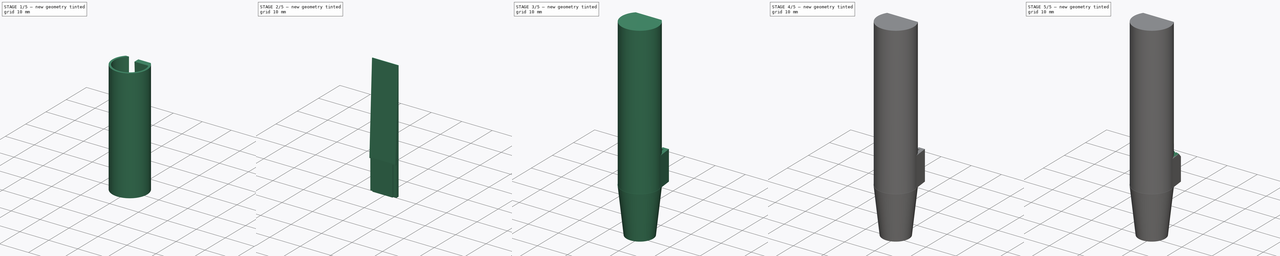
[diagram: build sequence overview — one tinted view per stage of 5, left to right]
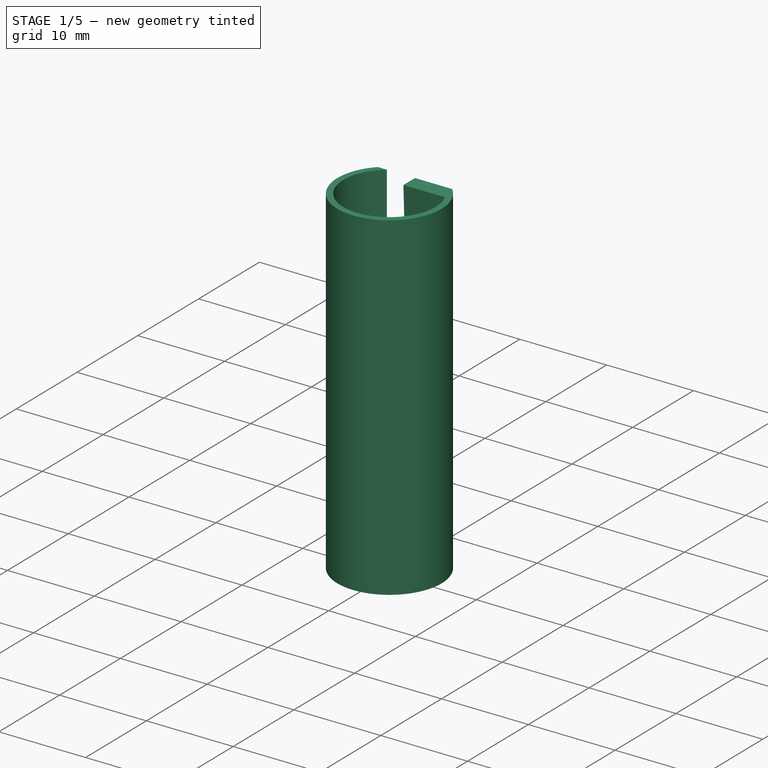
[diagram: stage 1 of 5 — iso view after this stage's code; geometry added in this stage tinted green]
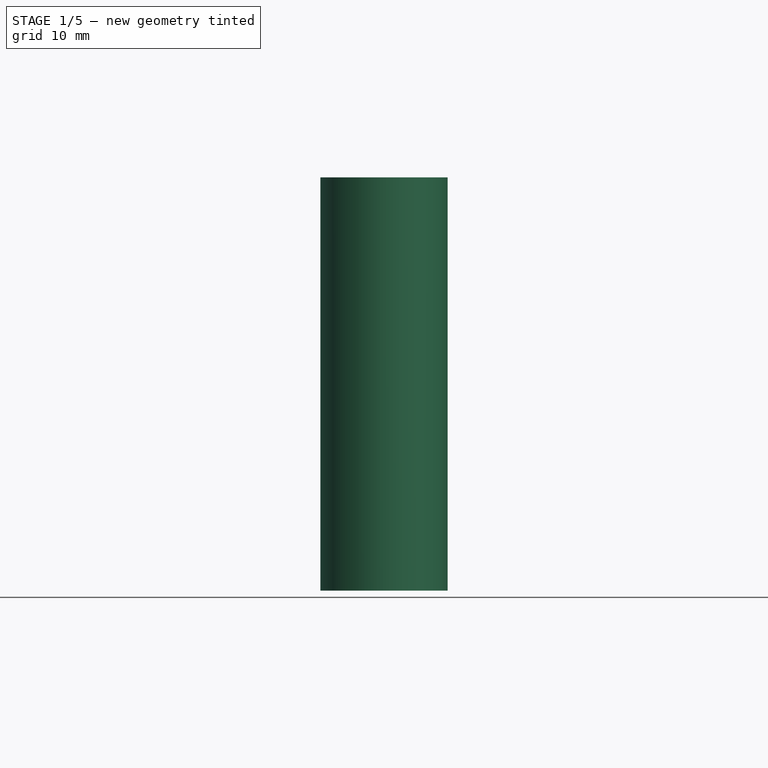
[diagram: stage 1 of 5 — front view after this stage's code; geometry added in this stage tinted green]
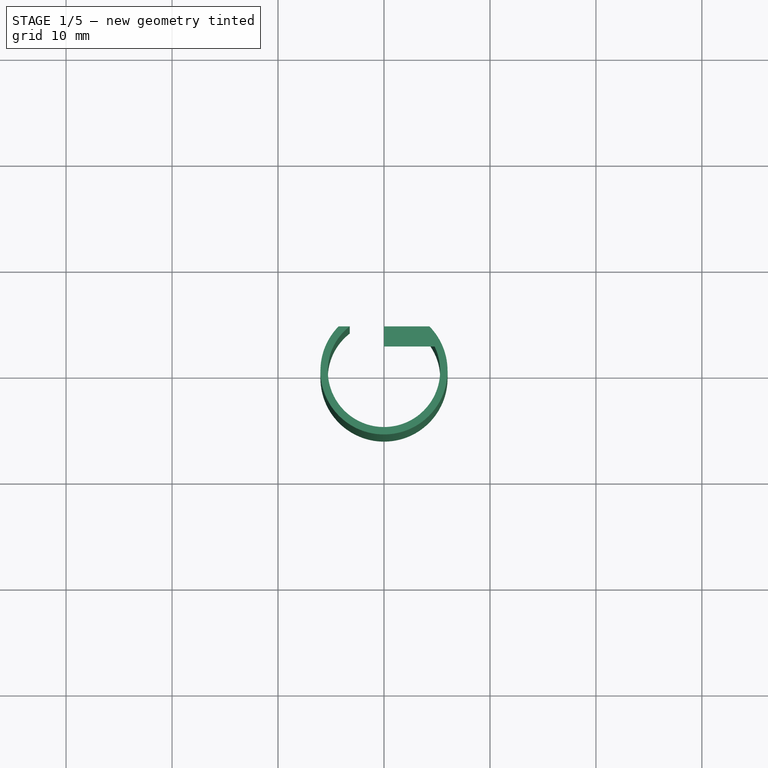
[diagram: stage 1 of 5 — top view after this stage's code; geometry added in this stage tinted green]
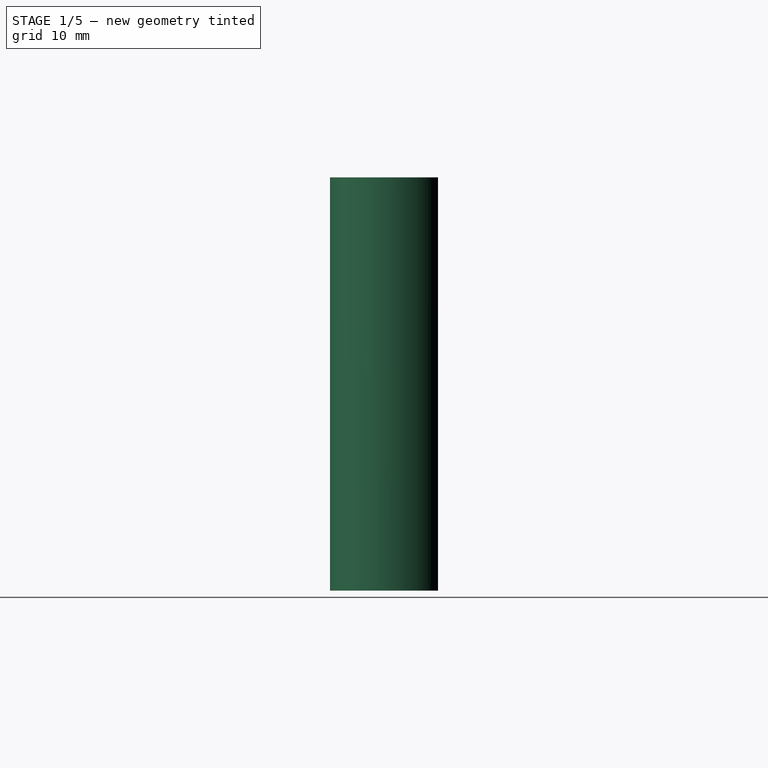
[diagram: stage 1 of 5 — right view after this stage's code; geometry added in this stage tinted green]
FCSTD DOCUMENT  (FreeCAD 1.0R39319 (Git))
Label: stroik1-C-leaf_PLA
License: All rights reserved
LicenseURL: https://en.wikipedia.org/wiki/All_rights_reserved
objects: Sketcher::SketchObject×17, PartDesign::Pocket×10, PartDesign::Pad×4, PartDesign::Chamfer×3, App::VarSet×2, PartDesign::Body×2, Part::FeaturePython×1, PartDesign::FeatureBase×1, PartDesign::Mirrored×1, PartDesign::Plane×1, PartDesign::AdditiveLoft×1, PartDesign::ShapeBinder×1
note: 97 computed .brp shape members not serialized (recipe doc carries the construction recipe); baked Part::Feature solids carry a one-line shape summary decoded from their .brp

FEATURE [Part::FeaturePython] Tube  # WARN: FeaturePython — macro-defined, semantics opaque (R4)
  AttacherType = Attacher::AttachEngine3D
  Height = 39
  InnerRadius = 5.3
  OuterRadius = 6
  Placement = pos=(0,0,0) rot=(0,1,0;1.5708rad)
  expr: Height = VarSet.leaf_len
  expr: InnerRadius = VarSet.d_inner
  expr: OuterRadius = VarSet.d_outer
FEATURE [PartDesign::FeatureBase] BaseFeature
  BaseFeature = -> Tube
  Suppressed = false
FEATURE [App::VarSet] VarSet
  d_inner = 5.3
  d_outer = 6
  d_outer_plug = 6.05
  leaf_end_thickness = 0.21
  leaf_gap = 1.5
  leaf_len = 39
  leaf_start_thickness = 1.44
  plug_inner_start = 4
  plug_len = 15
  plug_outer_start = 4.4
FEATURE [Sketcher::SketchObject] Sketch
  ArcFitTolerance = 1e-06
  AttachmentSupport = -> [YZ_Plane]
  ExternalGeometry = -> [BaseFeature]
  FullyConstrained = true
  MakeInternals = false
  MapMode = 5
  Placement = pos=(0,0,0) rot=(0.57735,0.57735,0.57735;2.0944rad)
  expr: Constraints[14] = VarSet.leaf_len / 4
  expr: Constraints[8] = VarSet.d_outer * 0.3
  sketch-geometry (6):
    g0: LineSegment StartX=6 StartY=39 StartZ=0 EndX=4.2 EndY=39 EndZ=0
    g1: LineSegment StartX=4.2 StartY=0 StartZ=0 EndX=6 EndY=0 EndZ=0
    g2: LineSegment StartX=6 StartY=0 StartZ=0 EndX=6 EndY=9.75 EndZ=0
    g3: LineSegment StartX=6 StartY=9.75 StartZ=0 EndX=6 EndY=39 EndZ=0
    g4: LineSegment StartX=4.2 StartY=39 StartZ=0 EndX=4.2 EndY=9.75 EndZ=0
    g5: LineSegment StartX=4.2 StartY=9.75 StartZ=0 EndX=4.2 EndY=0 EndZ=0
  constraints (17):
    c: Coincident(g0,g4)
    c: Coincident(g5,g1)
    c: Coincident(g1,g2)
    c: Coincident(g3,g0)
    c: Horizontal(g0)
    c: Horizontal(g1)
    c: Coincident(g0,g-3)
    c: PointOnObject(g5,g-4)
    c: DistanceX(g5,g1) = 1.8
    c: Coincident(g2,g3)
    c: Vertical(g2)
    c: Vertical(g3)
    c: Coincident(g4,g5)
    c: Vertical(g5)
    c: DistanceY(g2,g2) = 9.75
    c: Horizontal(g2,g4)
    c: Vertical(g4)
FEATURE [Sketcher::SketchObject] Sketch001
  ArcFitTolerance = 1e-06
  AttachmentSupport = -> [YZ_Plane]
  ExternalGeometry = -> [Sketch]
  FullyConstrained = true
  MakeInternals = false
  MapMode = 5
  Placement = pos=(0,0,0) rot=(0.57735,0.57735,0.57735;2.0944rad)
  expr: Constraints[12] = 0.8
  expr: Constraints[13] = VarSet.leaf_gap + 0.4 mm
  sketch-geometry (6):
    g0: LineSegment StartX=4.2 StartY=0 StartZ=0 EndX=3.4 EndY=0 EndZ=0
    g1: LineSegment StartX=3.4 StartY=0 StartZ=0 EndX=3.4 EndY=9.75 EndZ=0
    g2: LineSegment StartX=3.4 StartY=9.75 StartZ=0 EndX=2.3 EndY=39 EndZ=0
    g3: LineSegment StartX=2.3 StartY=39 StartZ=0 EndX=4.2 EndY=39 EndZ=0
    g4: LineSegment StartX=4.2 StartY=39 StartZ=0 EndX=4.2 EndY=9.75 EndZ=0
    g5: LineSegment StartX=4.2 StartY=9.75 StartZ=0 EndX=4.2 EndY=0 EndZ=0
  constraints (15):
    c: Coincident(g-4,g0)
    c: PointOnObject(g0,g-1)
    c: Coincident(g0,g1)
    c: Vertical(g1)
    c: Coincident(g1,g2)
    c: Coincident(g2,g3)
    c: Coincident(g3,g-3)
    c: Horizontal(g3)
    c: Coincident(g3,g4)
    c: Coincident(g4,g-4)
    c: Coincident(g4,g5)
    c: Coincident(g5,g0)
    c: DistanceX(g1,g4) = 0.8
    c: DistanceX(g2,g3) = 1.9
    c: Horizontal(g1,g4)
FEATURE [PartDesign::Pocket] Pocket  label="1 ścięcie"
  BaseFeature = -> BaseFeature
  Direction = (-1,0,0)
  Length = 5
  Length2 = 5
  Midplane = true
  Profile = -> Sketch
  ReferenceAxis = -> Sketch [N_Axis]
  Refine = true
  Suppressed = false
  Type = 1
FEATURE [PartDesign::Pad] Pad  label="uzupełnienie"
  AlongSketchNormal = false
  BaseFeature = -> Pocket
  Direction = (1,0,0)
  Length = 13
  Length2 = 10
  Midplane = true
  Profile = -> Sketch001
  ReferenceAxis = -> Sketch001 [N_Axis]
  Refine = true
  Suppressed = false
  Type = 1
  UpToShape = -> [Pocket]
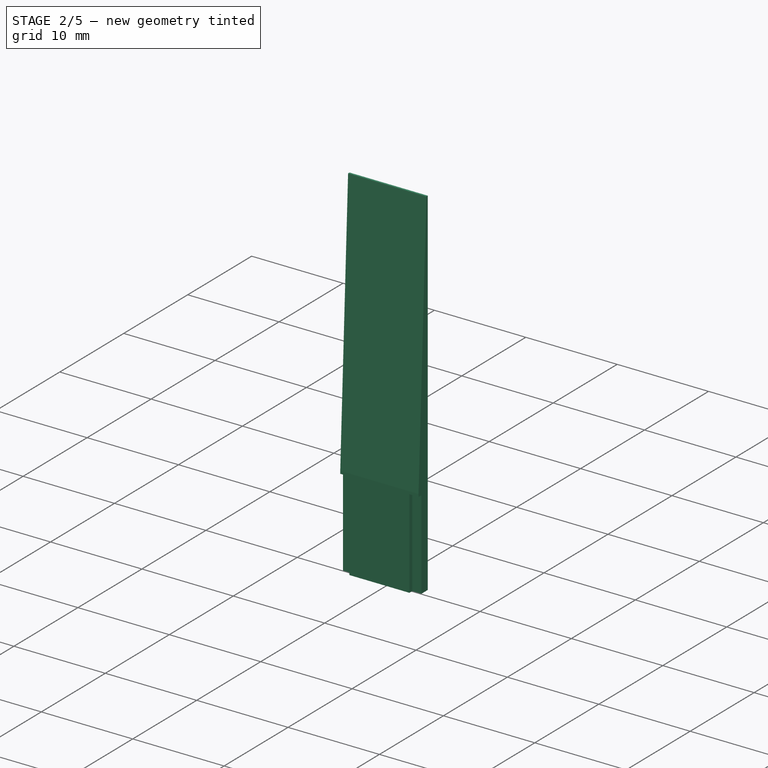
[diagram: stage 2 of 5 — iso view after this stage's code; geometry added in this stage tinted green]
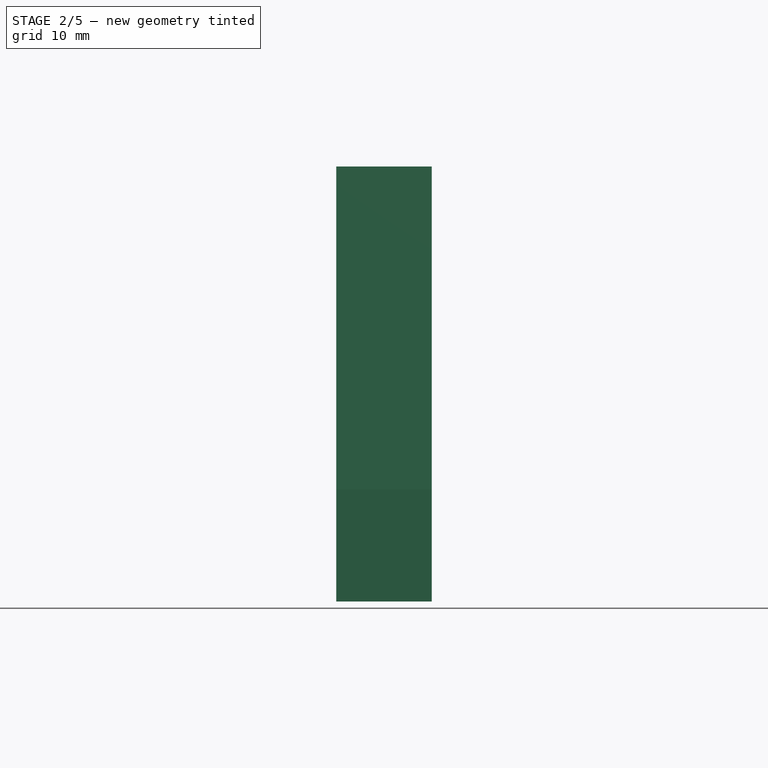
[diagram: stage 2 of 5 — front view after this stage's code; geometry added in this stage tinted green]
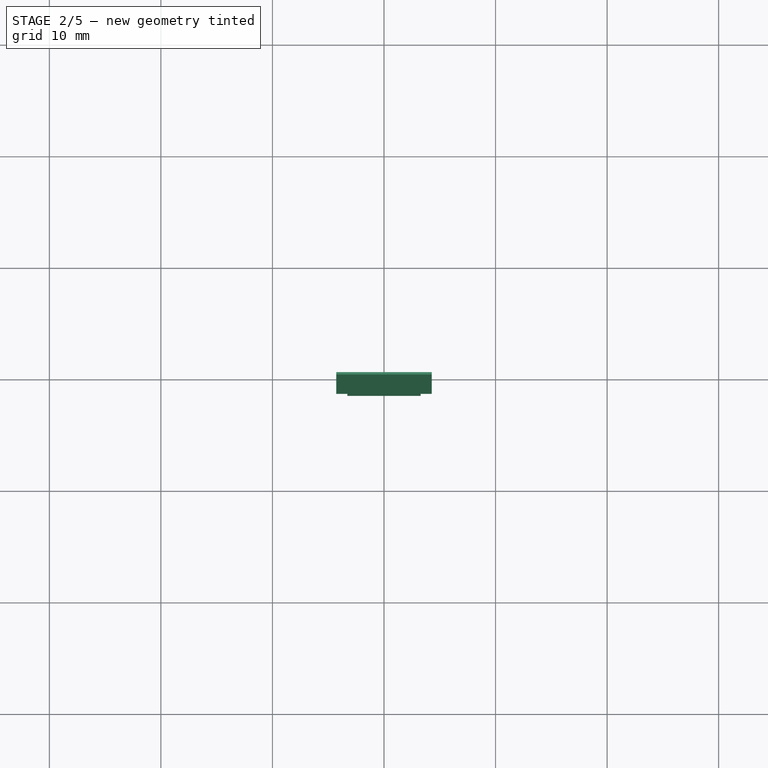
[diagram: stage 2 of 5 — top view after this stage's code; geometry added in this stage tinted green]
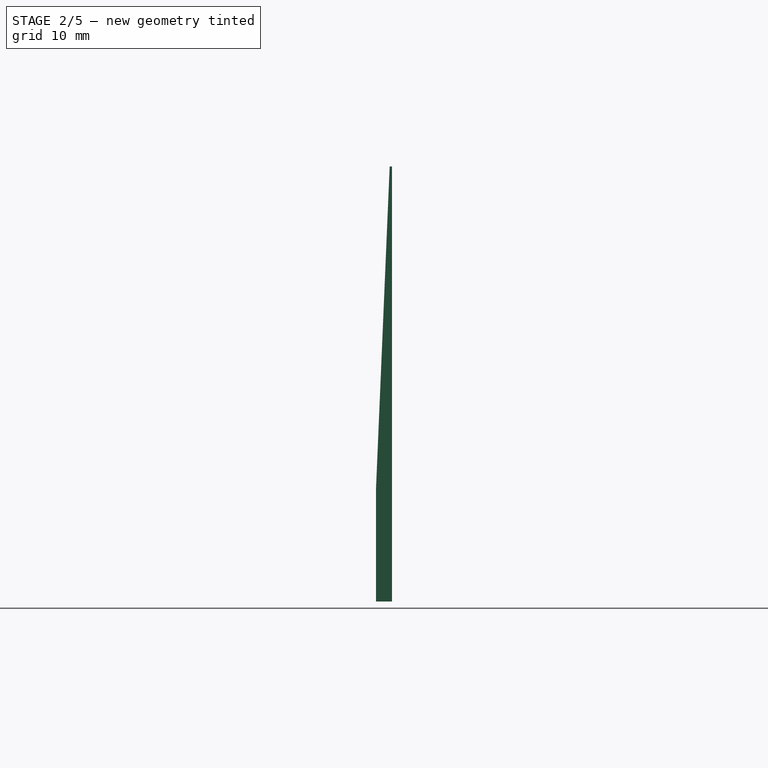
[diagram: stage 2 of 5 — right view after this stage's code; geometry added in this stage tinted green]
FEATURE [PartDesign::Mirrored] Mirrored
  BaseFeature = -> Pad
  MirrorPlane = -> YZ_Plane
  Originals = -> [Pad]
  Refine = true
  Suppressed = false
  TransformMode = 0
FEATURE [PartDesign::ShapeBinder] ShapeBinder
  Support = -> [Mirrored]
  TraceSupport = false
FEATURE [Sketcher::SketchObject] Sketch010  label="main shape"
  ArcFitTolerance = 1e-06
  AttachmentSupport = -> [XZ_Plane001]
  ExternalGeometry = -> [ShapeBinder]
  FullyConstrained = true
  MakeInternals = false
  MapMode = 5
  Placement = pos=(0,0,0) rot=(1,0,0;1.5708rad)
  expr: Constraints[6] = VarSet.leaf_len / 4
  expr: Constraints[9] = VarSet.leaf_len
  sketch-geometry (6):
    g0: LineSegment StartX=-4.28486 StartY=0 StartZ=0 EndX=4.28486 EndY=9e-16 EndZ=0
    g1: LineSegment StartX=4.28486 StartY=9e-16 StartZ=0 EndX=4.28486 EndY=9.75 EndZ=0
    g2: LineSegment StartX=-4.28486 StartY=9.75 StartZ=0 EndX=-4.28486 EndY=0 EndZ=0
    g3: LineSegment StartX=4.28486 StartY=9.75 StartZ=0 EndX=4.28486 EndY=39 EndZ=0
    g4: LineSegment StartX=-4.28486 StartY=9.75 StartZ=0 EndX=-4.28486 EndY=39 EndZ=0
    g5: LineSegment StartX=-4.28486 StartY=39 StartZ=0 EndX=4.28486 EndY=39 EndZ=0
  constraints (15):
    c: Coincident(g0,g1)
    c: Coincident(g2,g0)
    c: Vertical(g1)
    c: Vertical(g2)
    c: Coincident(g0,g-3)
    c: Coincident(g0,g-3)
    c: DistanceY(g1,g1) = 9.75
    c: Coincident(g3,g1)
    c: Symmetric(g3,g4,g-2)
    c: DistanceY(g0,g3) = 39
    c: Horizontal(g2,g1)
    c: Coincident(g4,g2)
    c: Coincident(g5,g4)
    c: Coincident(g5,g3)
    c: Vertical(g3)
FEATURE [PartDesign::Pad] Pad003
  Direction = (0,-1,2e-16)
  Length = 1.44
  Length2 = 10
  Placement = pos=(0,0,0) rot=(1,0,0;1.5708rad)
  Profile = -> Sketch010
  ReferenceAxis = -> Sketch010 [N_Axis]
  Refine = true
  Suppressed = false
  Type = 0
  expr: Length = VarSet.leaf_start_thickness
FEATURE [Sketcher::SketchObject] Sketch011
  ArcFitTolerance = 1e-06
  AttachmentSupport = -> [Pad003]
  ExternalGeometry = -> [Pad003]
  FullyConstrained = true
  MakeInternals = false
  MapMode = 5
  Placement = pos=(0,0,4e-16) rot=(1,0,0;3.14159rad)
  sketch-geometry (8):
    g0: LineSegment StartX=-3.28486 StartY=1.44 StartZ=0 EndX=-3.28486 EndY=1 EndZ=0
    g1: LineSegment StartX=-3.28486 StartY=1 StartZ=0 EndX=-8.28486 EndY=1 EndZ=0
    g2: LineSegment StartX=-8.28486 StartY=1 StartZ=0 EndX=-8.28486 EndY=4.94104 EndZ=0
    g3: LineSegment StartX=-8.28486 StartY=4.94104 StartZ=0 EndX=-3.28486 EndY=1.44 EndZ=0
    g4: LineSegment StartX=8.28486 StartY=4.94104 StartZ=0 EndX=3.28486 EndY=1.44 EndZ=0
    g5: LineSegment StartX=3.28486 StartY=1.44 StartZ=0 EndX=3.28486 EndY=1 EndZ=0
    g6: LineSegment StartX=3.28486 StartY=1 StartZ=0 EndX=8.28486 EndY=1 EndZ=0
    g7: LineSegment StartX=8.28486 StartY=1 StartZ=0 EndX=8.28486 EndY=4.94104 EndZ=0
  constraints (21):
    c: PointOnObject(g0,g-3)
    c: Vertical(g0)
    c: Coincident(g0,g1)
    c: Horizontal(g1)
    c: Coincident(g1,g2)
    c: Vertical(g2)
    c: Coincident(g2,g3)
    c: Coincident(g3,g0)
    c: DistanceX(g-4,g0) = 1
    c: Vertical(g5)
    c: Coincident(g5,g6)
    c: Coincident(g6,g7)
    c: Coincident(g7,g4)
    c: Coincident(g4,g5)
    c: Symmetric(g4,g0,g-2)
    c: Symmetric(g5,g0,g-2)
    c: Symmetric(g6,g1,g-2)
    c: Symmetric(g4,g2,g-2)
    c: DistanceY(g-5,g0) = 1
    c: Angle(g-3,g3) = 2.53073
    c: DistanceX(g1,g1) = 5
FEATURE [PartDesign::Pocket] Pocket004  label="uchwyt"
  BaseFeature = -> Pad003
  Direction = (0,0,1)
  Length = 9.75
  Length2 = 5
  Placement = pos=(0,0,0) rot=(1,0,0;1.5708rad)
  Profile = -> Sketch011
  ReferenceAxis = -> Sketch011 [N_Axis]
  Refine = true
  Suppressed = false
  Type = 0
  expr: Length = VarSet.leaf_len / 4
FEATURE [Sketcher::SketchObject] Sketch012
  ArcFitTolerance = 1e-06
  AttachmentSupport = -> [Pocket004]
  FullyConstrained = true
  MakeInternals = false
  MapMode = 5
  Placement = pos=(-4.28486,0,-2.78e-14) rot=(0.707107,0,-0.707107;3.14159rad)
  expr: Constraints[0] = VarSet.d_inner + 0.4 mm
  expr: Constraints[5] = VarSet.leaf_end_thickness
  sketch-geometry (3):
    g0: LineSegment StartX=-39.052 StartY=0.21 StartZ=0 EndX=-10.0388 EndY=1.44 EndZ=0
    g1: LineSegment StartX=-39.052 StartY=0.21 StartZ=0 EndX=-39.052 EndY=14.04 EndZ=0
    g2: LineSegment StartX=-39.052 StartY=14.04 StartZ=0 EndX=-10.0388 EndY=1.44 EndZ=0
  constraints (8):
    c: DistanceX(g0,g-3) = 5.7
    c: Coincident(g1,g0)
    c: Vertical(g1)
    c: Coincident(g2,g1)
    c: Coincident(g2,g0)
    c: DistanceY(g-4,g0) = 0.21
    c: Coincident(g0,g-3)
    c: DistanceY(g1,g1) = 13.83
FEATURE [PartDesign::Pocket] Pocket005  label="Pochylenie"
  BaseFeature = -> Pocket004
  Direction = (1,0,6.4e-15)
  Length = 5
  Length2 = 5
  Placement = pos=(0,0,0) rot=(1,0,0;1.5708rad)
  Profile = -> Sketch012
  ReferenceAxis = -> Sketch012 [N_Axis]
  Refine = true
  Suppressed = false
  Type = 1
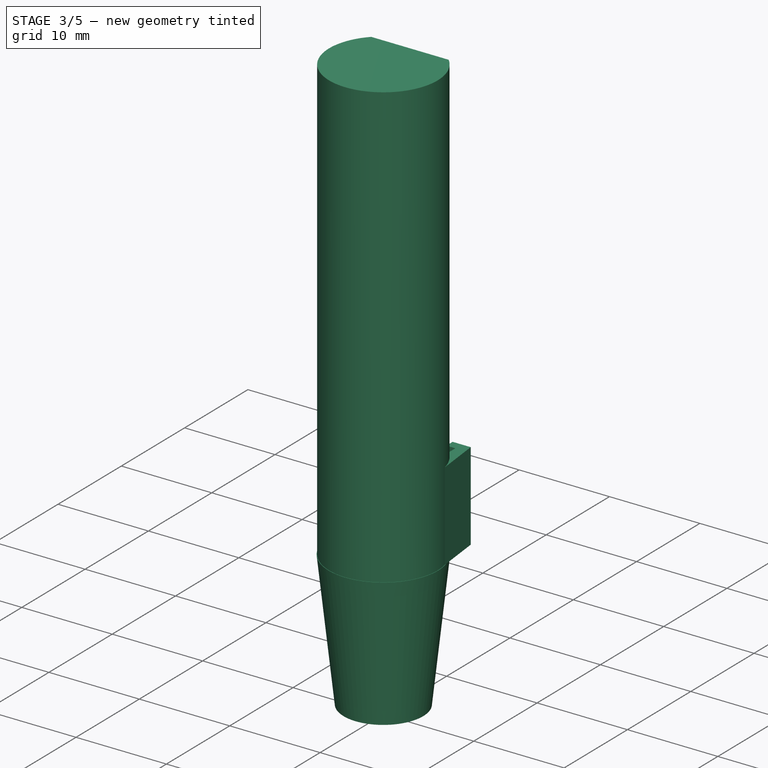
[diagram: stage 3 of 5 — iso view after this stage's code; geometry added in this stage tinted green]
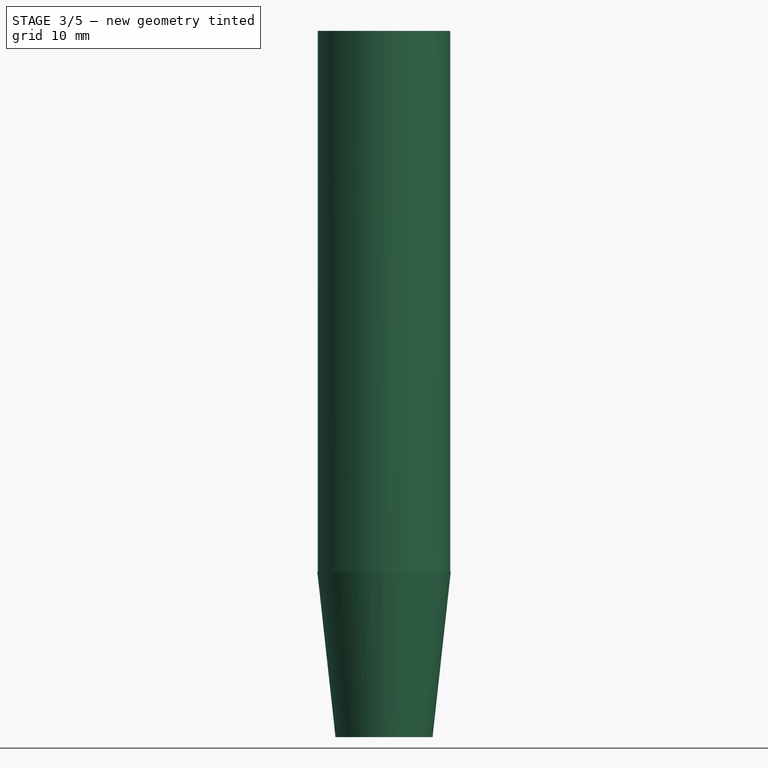
[diagram: stage 3 of 5 — front view after this stage's code; geometry added in this stage tinted green]
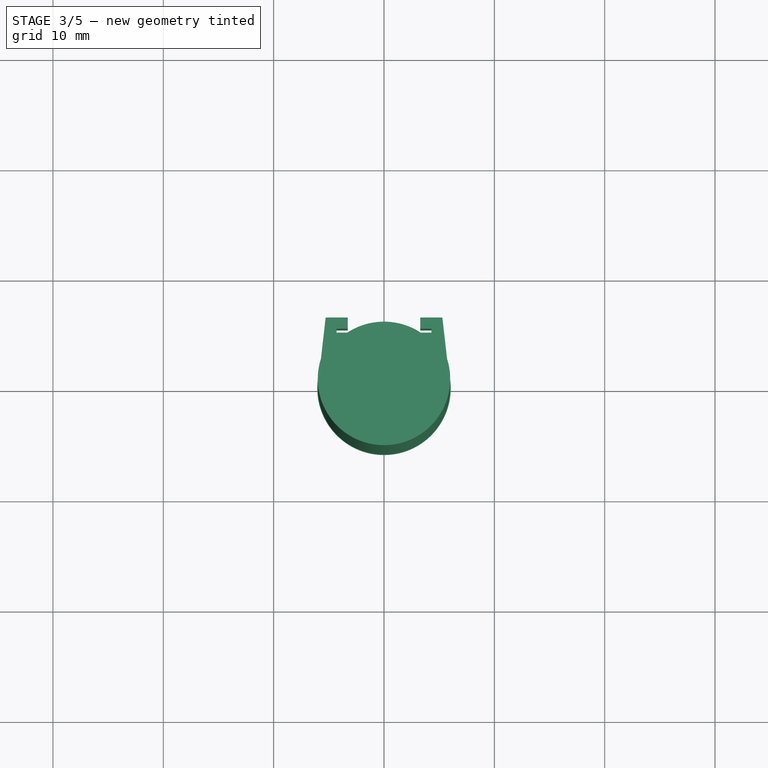
[diagram: stage 3 of 5 — top view after this stage's code; geometry added in this stage tinted green]
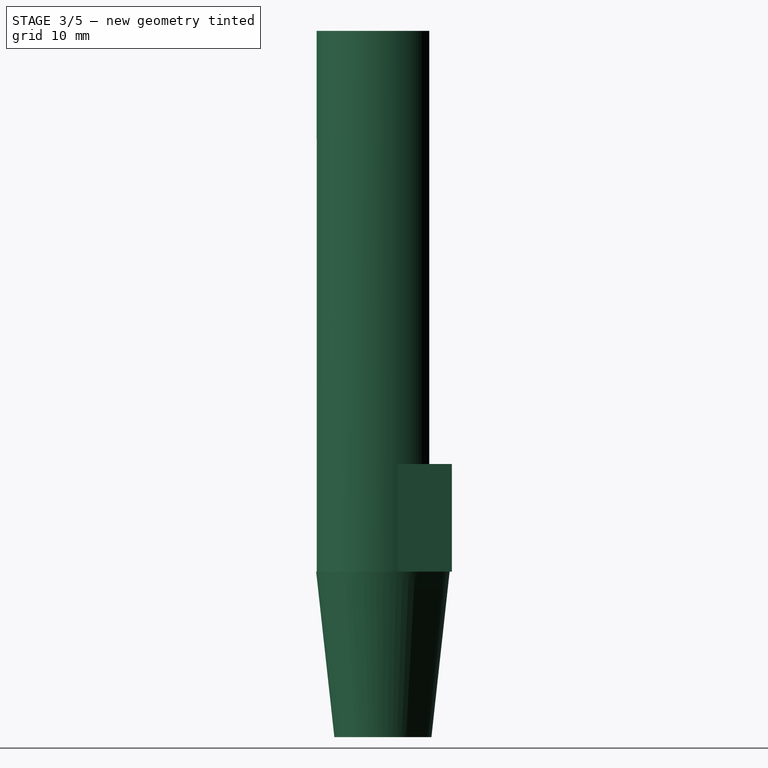
[diagram: stage 3 of 5 — right view after this stage's code; geometry added in this stage tinted green]
FEATURE [Sketcher::SketchObject] Sketch002
  ArcFitTolerance = 1e-06
  AttachmentSupport = -> [Mirrored]
  ExternalGeometry = -> [Mirrored]
  FullyConstrained = true
  MakeInternals = false
  MapMode = 5
  Placement = pos=(0,4.2,0) rot=(0,0.707107,0.707107;3.14159rad)
  expr: Constraints[11] = VarSet.d_outer / 3
  expr: Constraints[8] = VarSet.leaf_len / 10
  expr: Constraints[9] = VarSet.leaf_len / 3
  sketch-geometry (4):
    g0: LineSegment StartX=2.28486 StartY=22.1 StartZ=0 EndX=2.28486 EndY=35.1 EndZ=0
    g1: LineSegment StartX=2.28486 StartY=35.1 StartZ=0 EndX=-2.28486 EndY=35.1 EndZ=0
    g2: LineSegment StartX=-2.28486 StartY=35.1 StartZ=0 EndX=-2.28486 EndY=22.1 EndZ=0
    g3: ArcOfCircle CenterX=0 CenterY=22.1 CenterZ=0 NormalX=0 NormalY=0 NormalZ=1 AngleXU=0 Radius=2.28486 StartAngle=3.14159 EndAngle=6.28319
  constraints (12):
    c: Coincident(g0,g1)
    c: Coincident(g1,g2)
    c: Coincident(g3,g2)
    c: Coincident(g3,g0)
    c: PointOnObject(g3,g-2)
    c: Horizontal(g0,g2)
    c: Horizontal(g2,g3)
    c: Symmetric(g0,g1,g-2)
    c: DistanceY(g1,g-7) = 3.9
    c: DistanceY(g3,g1) = 13
    c: Vertical(g1,g2)
    c: DistanceX(g0,g-6) = 2
FEATURE [PartDesign::Pocket] Pocket001  label="dziurka"
  BaseFeature = -> Mirrored
  Direction = (0,-1,2e-16)
  Length = 2.65
  Length2 = 5
  Profile = -> Sketch002
  ReferenceAxis = -> Sketch002 [N_Axis]
  Refine = true
  Suppressed = false
  Type = 0
  expr: Length = VarSet.d_inner / 2
FEATURE [Sketcher::SketchObject] Sketch003
  ArcFitTolerance = 1e-06
  AttachmentSupport = -> [Pocket001]
  ExternalGeometry = -> [Pocket001]
  FullyConstrained = true
  MakeInternals = false
  MapMode = 5
  Placement = pos=(0,0,39) rot=(0,0,1;0rad)
  sketch-geometry (2):
    g0: ArcOfCircle CenterX=0 CenterY=0 CenterZ=0 NormalX=0 NormalY=0 NormalZ=1 AngleXU=0 Radius=6 StartAngle=2.3662 EndAngle=7.05858
    g1: LineSegment StartX=-4.28486 StartY=4.2 StartZ=0 EndX=4.28486 EndY=4.2 EndZ=0
  constraints (5):
    c: Coincident(g0,g-1)
    c: Coincident(g0,g-4)
    c: Coincident(g1,g0)
    c: Coincident(g1,g0)
    c: Horizontal(g1)
FEATURE [PartDesign::Pad] Pad001  label="zaślepka"
  BaseFeature = -> Pocket001
  Direction = (0,0,1)
  Length = 10
  Length2 = 10
  Profile = -> Sketch003
  ReferenceAxis = -> Sketch003 [N_Axis]
  Refine = true
  Suppressed = false
  Type = 0
FEATURE [Sketcher::SketchObject] Sketch004
  ArcFitTolerance = 1e-06
  AttachmentSupport = -> [Pad001]
  ExternalGeometry = -> [Pad001]
  FullyConstrained = true
  MakeInternals = false
  MapMode = 5
  Placement = pos=(0,0,0) rot=(1,0,0;3.14159rad)
  expr: Constraints[4] = VarSet.d_outer_plug
  expr: Constraints[7] = VarSet.d_inner
  sketch-geometry (3):
    g0: ArcOfCircle CenterX=0 CenterY=0 CenterZ=0 NormalX=0 NormalY=0 NormalZ=1 AngleXU=0 Radius=5.3 StartAngle=5.58672 EndAngle=10.1212
    g1: LineSegment StartX=-4.06571 StartY=-3.4 StartZ=0 EndX=4.06571 EndY=-3.4 EndZ=0
    g2: Circle CenterX=0 CenterY=0 CenterZ=0 NormalX=0 NormalY=0 NormalZ=1 AngleXU=0 Radius=6.05
  constraints (8):
    c: Coincident(g1,g0)
    c: Horizontal(g1)
    c: Coincident(g2,g0)
    c: Coincident(g-1,g0)
    c: Radius(g2) = 6.05
    c: Horizontal(g0,g-6)
    c: Coincident(g1,g0)
    c: Radius(g0) = 5.3
FEATURE [PartDesign::Plane] DatumPlane
  AttachmentOffset = pos=(0,0,15) rot=(0,0,1;0rad)
  AttachmentSupport = -> [Pocket001]
  Length = 60
  MapMode = 5
  Placement = pos=(0,0,-15) rot=(1,0,0;3.14159rad)
  ResizeMode = 0
  Width = 60
  expr: .AttachmentOffset.Base.z = VarSet.plug_len
FEATURE [Sketcher::SketchObject] Sketch005
  ArcFitTolerance = 1e-06
  AttachmentSupport = -> [DatumPlane]
  ExternalGeometry = -> [Sketch004,Pad001]
  FullyConstrained = true
  MakeInternals = false
  MapMode = 5
  Placement = pos=(0,0,-15) rot=(1,0,0;3.14159rad)
  expr: Constraints[2] = VarSet.plug_inner_start
  expr: Constraints[3] = VarSet.plug_outer_start
  sketch-geometry (2):
    g0: Circle CenterX=0 CenterY=0 CenterZ=0 NormalX=0 NormalY=0 NormalZ=1 AngleXU=0 Radius=4
    g1: Circle CenterX=0 CenterY=0 CenterZ=0 NormalX=0 NormalY=0 NormalZ=1 AngleXU=0 Radius=4.4
  constraints (4):
    c: Coincident(g0,g-1)
    c: Coincident(g1,g0)
    c: Radius(g0) = 4
    c: Radius(g1) = 4.4
FEATURE [PartDesign::AdditiveLoft] AdditiveLoft  label="dziubek"
  BaseFeature = -> Pad001
  Closed = false
  Profile = -> Sketch005
  Refine = true
  Ruled = false
  Sections = -> [Sketch004]
  Suppressed = false
FEATURE [Sketcher::SketchObject] Sketch006
  ArcFitTolerance = 1e-06
  AttachmentSupport = -> [Pad001]
  ExternalGeometry = -> [Pad001]
  FullyConstrained = false
  MakeInternals = false
  MapMode = 5
  Placement = pos=(0,0,0) rot=(1,0,0;3.14159rad)
  expr: Constraints[24] = 1.05 mm
  sketch-geometry (16):
    g0: LineSegment StartX=4.28486 StartY=-4.2 StartZ=0 EndX=6 EndY=0 EndZ=0
    g1: LineSegment StartX=6 StartY=0 StartZ=0 EndX=5.28986 EndY=-6.25 EndZ=0
    g2: LineSegment StartX=5.28986 StartY=-6.25 StartZ=0 EndX=3.28986 EndY=-6.25 EndZ=0
    g3: LineSegment StartX=3.28986 StartY=-6.25 StartZ=0 EndX=3.28986 EndY=-5.25 EndZ=0
    g4: LineSegment StartX=3.28986 StartY=-5.25 StartZ=0 EndX=4.28986 EndY=-5.25 EndZ=0
    g5: LineSegment StartX=-5.28986 StartY=-6.25 StartZ=0 EndX=-3.28986 EndY=-6.25 EndZ=0
    g6: LineSegment StartX=-6 StartY=0 StartZ=0 EndX=-5.28986 EndY=-6.25 EndZ=0
    g7: LineSegment StartX=-4.28486 StartY=-4.2 StartZ=0 EndX=-6 EndY=0 EndZ=0
    g8: LineSegment StartX=-3.28986 StartY=-5.25 StartZ=0 EndX=-4.28986 EndY=-5.25 EndZ=0
    g9: LineSegment StartX=-3.28986 StartY=-6.25 StartZ=0 EndX=-3.28986 EndY=-5.25 EndZ=0
    g10: LineSegment StartX=4.28986 StartY=-5.25 StartZ=0 EndX=4.28986 EndY=-4.2 EndZ=0
    g11: LineSegment StartX=-4.28986 StartY=-5.25 StartZ=0 EndX=-4.28986 EndY=-4.2 EndZ=0
    g12: LineSegment StartX=4.28986 StartY=-4.2 StartZ=0 EndX=4.28717 EndY=-4.19654 EndZ=0
    g13: LineSegment StartX=4.28717 StartY=-4.19654 StartZ=0 EndX=4.28486 EndY=-4.2 EndZ=0
    g14: LineSegment StartX=-4.28986 StartY=-4.2 StartZ=0 EndX=-4.28627 EndY=-4.19642 EndZ=0
    g15: LineSegment StartX=-4.28627 StartY=-4.19642 StartZ=0 EndX=-4.28486 EndY=-4.2 EndZ=0
  constraints (36):
    c: Coincident(g-5,g0)
    c: Coincident(g0,g1)
    c: Coincident(g1,g2)
    c: Horizontal(g2)
    c: Coincident(g2,g3)
    c: Vertical(g3)
    c: Coincident(g3,g4)
    c: Horizontal(g4)
    c: Coincident(g4,g10)
    c: Coincident(g13,g0)
    c: Coincident(g7,g6)
    c: Coincident(g6,g5)
    c: Coincident(g5,g9)
    c: Vertical(g9)
    c: Coincident(g9,g8)
    c: Horizontal(g8)
    c: Coincident(g8,g11)
    c: Coincident(g15,g7)
    c: Symmetric(g2,g5,g-2)
    c: DistanceX(g4,g4) = 1
    c: Symmetric(g4,g11,g-2)
    c: Symmetric(g0,g6,g-2)
    c: DistanceY(g3,g3) = 1
    c: Symmetric(g7,g0,g-2)
    c: DistanceY(g10,g13) = 1.05
    c: DistanceX(g2,g2) = 2
    c: Coincident(g0,g-5)
    c: Symmetric(g5,g1,g-2)
    c: Coincident(g10,g12)
    c: Vertical(g10)
    c: Horizontal(g10,g0)
    c: DistanceX(g13,g12) = 0.005
    c: Coincident(g11,g14)
    c: Symmetric(g11,g10,g-2)
    c: Coincident(g12,g13)
    c: Coincident(g14,g15)
FEATURE [PartDesign::Pad] Pad002  label="uchwyt na listek"
  BaseFeature = -> AdditiveLoft
  Direction = (0,0,-1)
  Length = 9.75
  Length2 = 10
  Profile = -> Sketch006
  ReferenceAxis = -> Sketch006 [N_Axis]
  Refine = true
  Reversed = true
  Suppressed = false
  Type = 0
  expr: Length = VarSet.leaf_len / 4
FEATURE [PartDesign::Body] Body  label="stroik"
  AllowCompound = false
  BaseFeature = -> Tube
  Group = -> [BaseFeature,Sketch,Pocket,Sketch001,Pad,Mirrored,Sketch002,Pocket001,Sketch003,Pad001,Sketch004,DatumPlane,Sketch005,AdditiveLoft,Sketch006,Pad002,Sketch009,Pocket003,Chamfer,Sketch013,Pocket006,Sketch014,Pocket007,Sketch015,Sketch016,Pocket008,Sketch017,Pocket009,Chamfer001,Sketch018,Pocket010]
  Origin = -> Origin
  Tip = -> Pocket010
FEATURE [PartDesign::Chamfer] Chamfer002
  Angle = 45
  Base = -> Pocket005 [Edge7,Edge6,Edge5,Edge4,Edge3,Edge8,Edge2]
  BaseFeature = -> Pocket005
  ChamferType = 0
  FlipDirection = false
  Placement = pos=(0,0,0) rot=(1,0,0;1.5708rad)
  Refine = true
  Size = 0.5
  Size2 = 1
  SupportTransform = false
  Suppressed = false
  UseAllEdges = false
FEATURE [PartDesign::Body] Body001  label="listek"
  AllowCompound = false
  Group = -> [ShapeBinder,Sketch010,Pad003,Sketch011,Pocket004,Sketch012,Pocket005,Chamfer002]
  Origin = -> Origin001
  Placement = pos=(0,25,0) rot=(0,0,1;0rad)
  Tip = -> Chamfer002
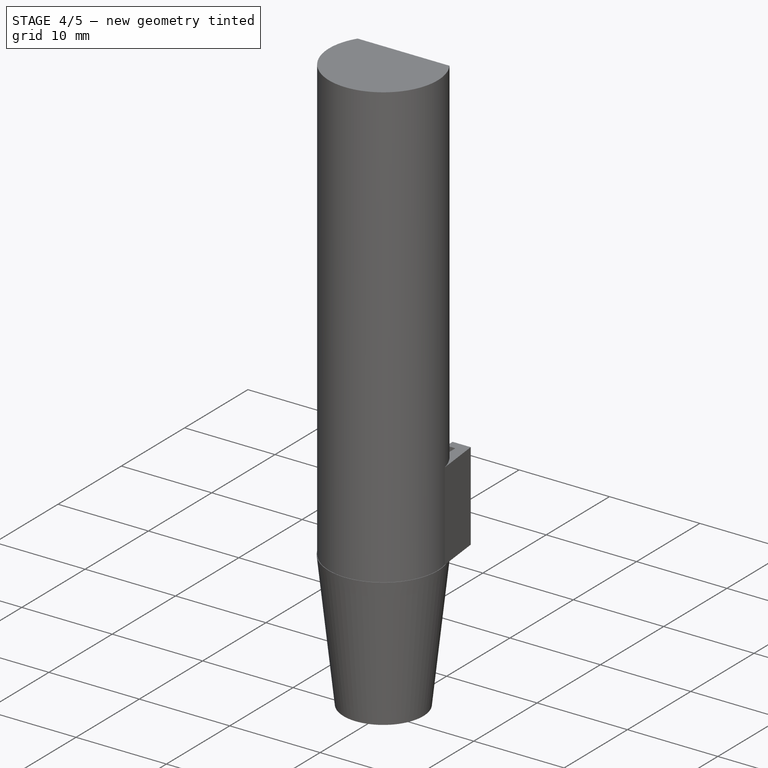
[diagram: stage 4 of 5 — iso view after this stage's code; geometry added in this stage tinted green]
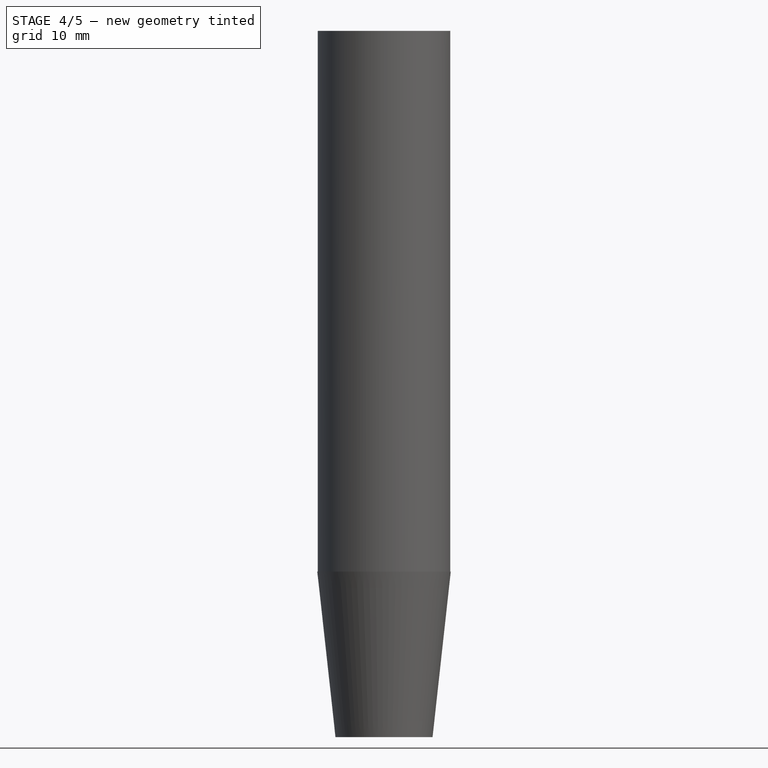
[diagram: stage 4 of 5 — front view after this stage's code; geometry added in this stage tinted green]
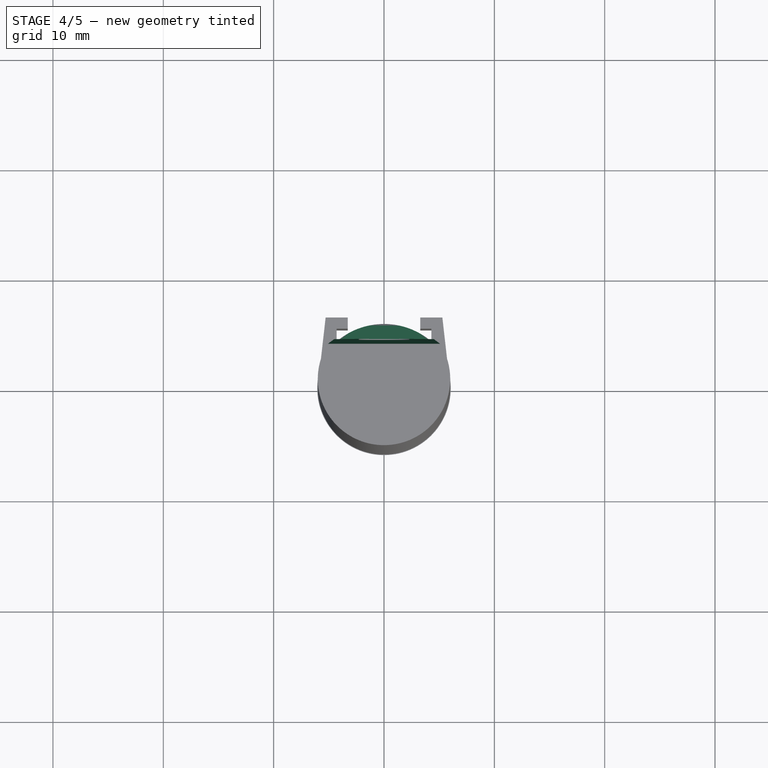
[diagram: stage 4 of 5 — top view after this stage's code; geometry added in this stage tinted green]
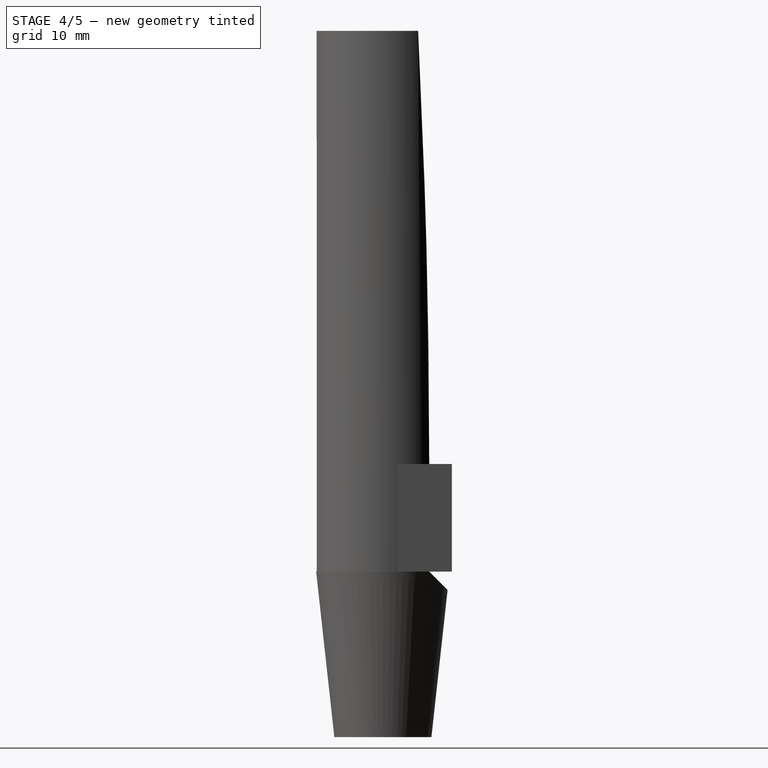
[diagram: stage 4 of 5 — right view after this stage's code; geometry added in this stage tinted green]
FEATURE [Sketcher::SketchObject] Sketch009
  ArcFitTolerance = 1e-06
  AttachmentSupport = -> [YZ_Plane]
  ExternalGeometry = -> [Pad001]
  FullyConstrained = false
  MakeInternals = false
  MapMode = 5
  Placement = pos=(0,0,0) rot=(0.57735,0.57735,0.57735;2.0944rad)
  expr: .Constraints.gap = VarSet.leaf_gap
  expr: Constraints[19] = 3 / 4 * VarSet.leaf_len * 2 / 2
  expr: Constraints[1] = VarSet.leaf_len / 4
  expr: Constraints[20] = 3 / 4 * VarSet.leaf_len * 2
  sketch-geometry (13):
    g0: GeomPoint X=4.2 Y=9.75 Z=0
    g1: Circle [constr] CenterX=4.2 CenterY=9.75 CenterZ=0 NormalX=0 NormalY=0 NormalZ=1 AngleXU=0 Radius=1
    g2: Circle [constr] CenterX=4.2 CenterY=39 CenterZ=0 NormalX=0 NormalY=0 NormalZ=1 AngleXU=0 Radius=1
    g3: Circle [constr] CenterX=1.96433 CenterY=68.25 CenterZ=0 NormalX=0 NormalY=0 NormalZ=1 AngleXU=0 Radius=1
    g4: BSplineCurve PolesCount=3 KnotsCount=2 Degree=2 IsPeriodic=0
    g5: GeomPoint [constr] X=4.2 Y=9.75 Z=0
    g6: GeomPoint [constr] X=1.96433 Y=68.25 Z=0
    g7: LineSegment [constr] StartX=1.96433 StartY=68.25 StartZ=0 EndX=4.2 EndY=9.75 EndZ=0
    g8: LineSegment StartX=104.2 StartY=41.25 StartZ=0 EndX=104.2 EndY=9.75 EndZ=0
    g9: LineSegment StartX=104.2 StartY=9.75 StartZ=0 EndX=4.2 EndY=9.75 EndZ=0
    g10: LineSegment StartX=1.96433 StartY=68.25 StartZ=0 EndX=1.96433 EndY=90 EndZ=0
    g11: LineSegment StartX=1.96433 StartY=90 StartZ=0 EndX=104.2 EndY=41.25 EndZ=0
    g12: LineSegment [constr] StartX=4.2 StartY=49 StartZ=0 EndX=2.7 EndY=49 EndZ=0
  constraints (29):
    c: PointOnObject(g0,g-3)
    c: DistanceY(g-3,g0) = 9.75
    c: Weight(g1) = 1
    c: Equal(g1,g2)
    c: Equal(g1,g3)
    c: InternalAlignment(g1,g4)
    c: InternalAlignment(g2,g4)
    c: InternalAlignment(g3,g4)
    c: InternalAlignment(g5,g4)
    c: InternalAlignment(g6,g4)
    c: Coincident(g1,g0)
    c: Coincident(g7,g4)
    c: Coincident(g7,g4)
    c: Vertical(g8)
    c: Coincident(g8,g9)
    c: Coincident(g9,g0)
    c: Horizontal(g9)
    c: DistanceX(g9,g9) = 100
    c: Vertical(g-3,g2)
    c: DistanceY(g0,g2) = 29.25
    c: DistanceY(g0,g4) = 58.5
    c: Coincident(g10,g4)
    c: Vertical(g10)
    c: Coincident(g11,g10)
    c: Coincident(g11,g8)
    c: Coincident(g12,g-3)
    c: PointOnObject(g12,g7)
    c: Horizontal(g12)
    c: DistanceX(g12,g12) = 1.5  'gap'
FEATURE [PartDesign::Pocket] Pocket003  label="2 ścięcie"
  BaseFeature = -> Pad002
  Direction = (-1,0,0)
  Length = 100
  Length2 = 5
  Midplane = true
  Profile = -> Sketch009
  ReferenceAxis = -> Sketch009 [N_Axis]
  Refine = true
  Suppressed = false
  Type = 0
FEATURE [PartDesign::Chamfer] Chamfer
  Angle = 45
  Base = -> Pocket003 [?Edge89,?Edge77]
  BaseFeature = -> Pocket003
  ChamferType = 0
  FlipDirection = false
  Refine = true
  Size = 2
  Size2 = 1
  SupportTransform = false
  Suppressed = true
  UseAllEdges = false
FEATURE [Sketcher::SketchObject] Sketch013
  ArcFitTolerance = 1e-06
  AttachmentSupport = -> [YZ_Plane]
  FullyConstrained = true
  MakeInternals = false
  MapMode = 5
  Placement = pos=(0,0,0) rot=(0.57735,0.57735,0.57735;2.0944rad)
  sketch-geometry (3):
    g0: LineSegment StartX=4.2 StartY=0 StartZ=0 EndX=18.3421 EndY=-14.1421 EndZ=0
    g1: LineSegment StartX=18.3421 StartY=-14.1421 StartZ=0 EndX=18.3421 EndY=1.8e-15 EndZ=0
    g2: LineSegment StartX=18.3421 StartY=1.8e-15 StartZ=0 EndX=4.2 EndY=0 EndZ=0
  constraints (8):
    c: Coincident(g-3,g0)
    c: Coincident(g0,g1)
    c: Vertical(g1)
    c: Coincident(g1,g2)
    c: Coincident(g2,g0)
    c: Angle(g-2,g0) = 0.785398
    c: Distance(g0,g0) = 20
    c: Angle(g0,g2) = 0.785398
FEATURE [PartDesign::Pocket] Pocket006
  BaseFeature = -> Chamfer
  Direction = (-1,0,0)
  Length = 5
  Length2 = 5
  Midplane = true
  Profile = -> Sketch013
  ReferenceAxis = -> Sketch013 [N_Axis]
  Refine = true
  Suppressed = false
  Type = 1
FEATURE [Sketcher::SketchObject] Sketch014
  ArcFitTolerance = 1e-06
  AttachmentSupport = -> [Pocket006]
  ExternalGeometry = -> [Mirrored]
  FullyConstrained = true
  MakeInternals = false
  MapMode = 5
  Placement = pos=(0,0,39) rot=(1,0,0;3.14159rad)
  sketch-geometry (2):
    g0: ArcOfCircle CenterX=0 CenterY=0 CenterZ=0 NormalX=0 NormalY=0 NormalZ=1 AngleXU=0 Radius=5.3 StartAngle=5.8343 EndAngle=9.87366
    g1: LineSegment StartX=4.77493 StartY=-2.3 StartZ=0 EndX=-4.77493 EndY=-2.3 EndZ=0
  constraints (5):
    c: Coincident(g0,g-1)
    c: Coincident(g0,g-4)
    c: Coincident(g1,g0)
    c: Coincident(g1,g0)
    c: Horizontal(g1)
FEATURE [PartDesign::Pocket] Pocket007
  BaseFeature = -> Pocket006
  Direction = (0,0,1)
  Length = 9
  Length2 = 5
  Profile = -> Sketch014
  ReferenceAxis = -> Sketch014 [N_Axis]
  Refine = true
  Suppressed = false
  Type = 0
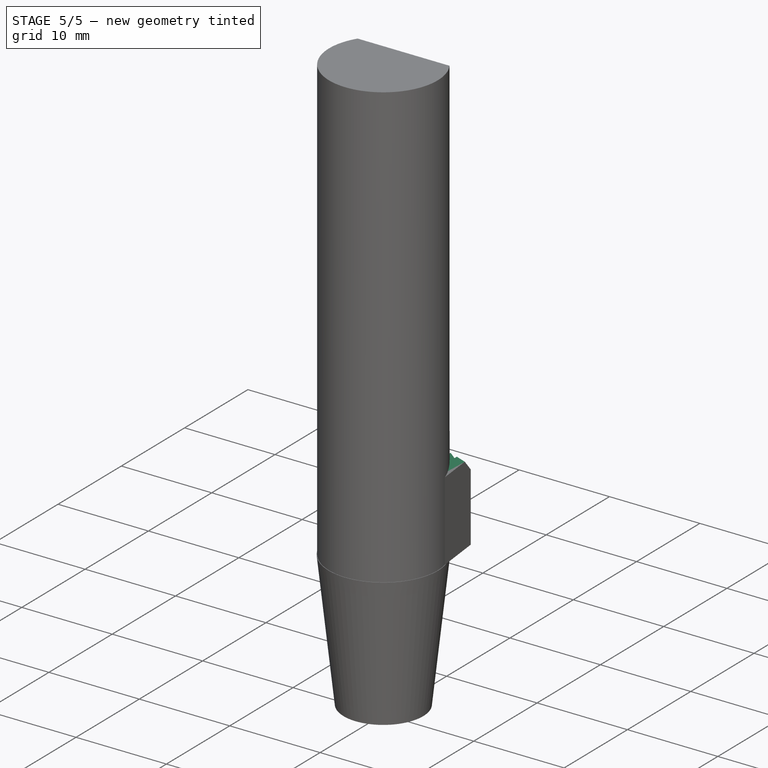
[diagram: stage 5 of 5 — iso view after this stage's code; geometry added in this stage tinted green]
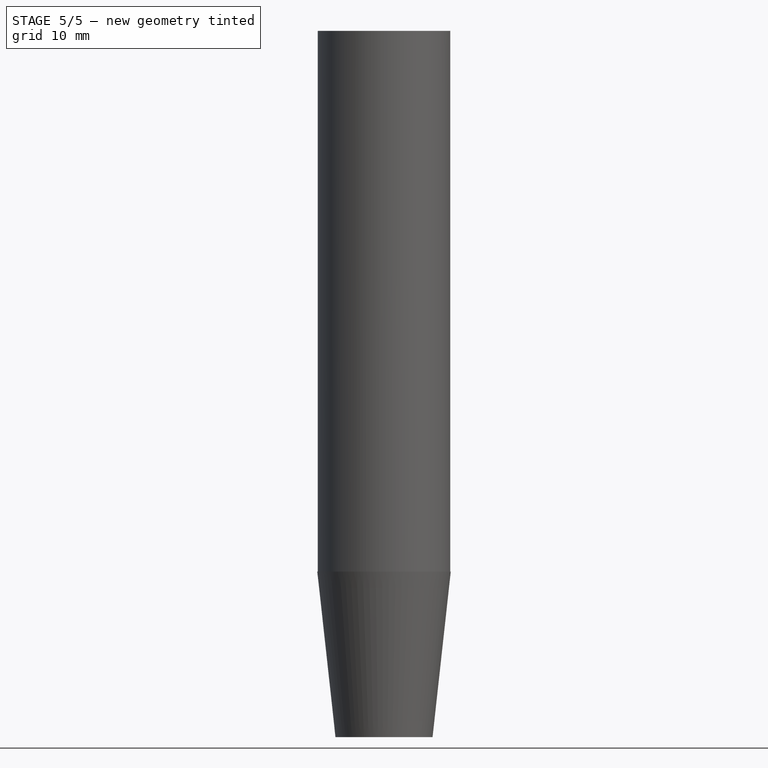
[diagram: stage 5 of 5 — front view after this stage's code; geometry added in this stage tinted green]
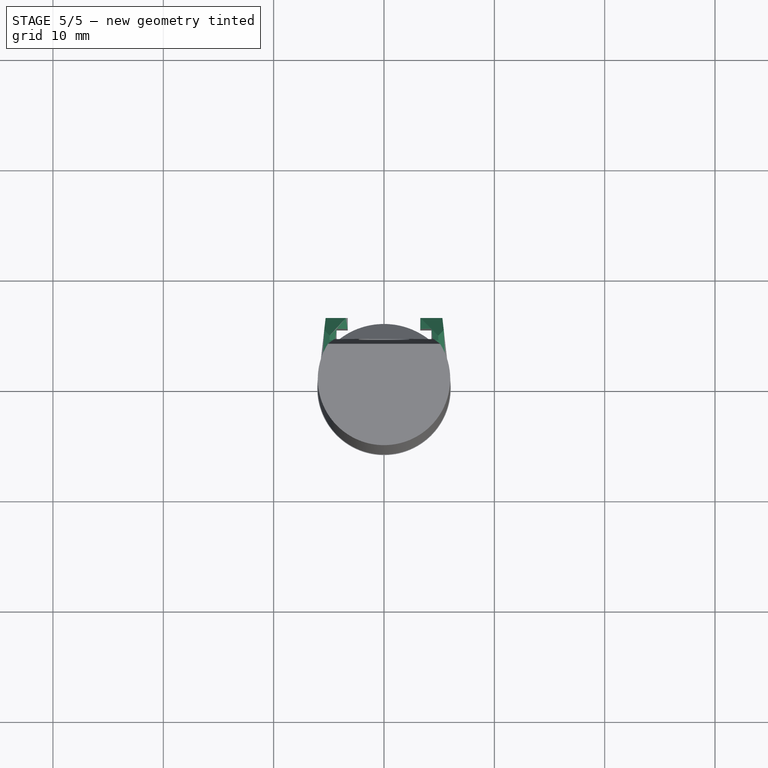
[diagram: stage 5 of 5 — top view after this stage's code; geometry added in this stage tinted green]
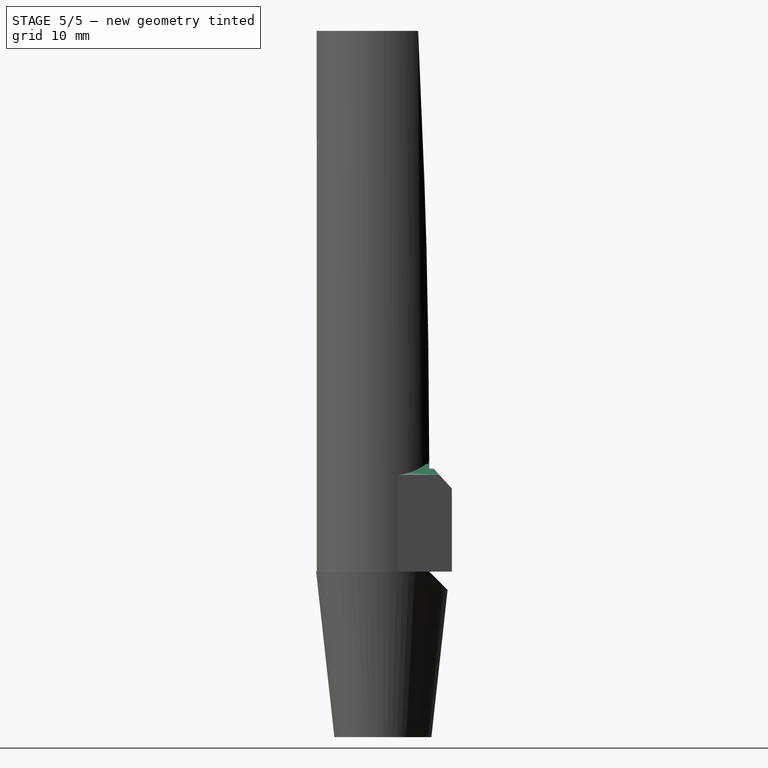
[diagram: stage 5 of 5 — right view after this stage's code; geometry added in this stage tinted green]
FEATURE [App::VarSet] VarSet001  label="VarSet009"
  d_inner = 5.3
  d_outer = 6
  d_outer_plug = 6
  leaf_angle = 0
  leaf_angle2 = 1.6
  leaf_end_thickness = 0.2
  leaf_len = 39
  leaf_start_thickness = 1.45
  plug_inner_start = 4
  plug_len = 15
  plug_outer_start = 4.4
FEATURE [Sketcher::SketchObject] Sketch015
  ArcFitTolerance = 1e-06
  AttachmentSupport = -> [Pocket007]
  FullyConstrained = true
  MakeInternals = false
  MapMode = 5
  Placement = pos=(0,6.25,0) rot=(0,0.707107,0.707107;3.14159rad)
FEATURE [Sketcher::SketchObject] Sketch016
  ArcFitTolerance = 1e-06
  AttachmentSupport = -> [Pocket007]
  ExternalGeometry = -> [Pocket007]
  FullyConstrained = false
  MakeInternals = false
  MapMode = 5
  Placement = pos=(0,6.25,0) rot=(0,0.707107,0.707107;3.14159rad)
  sketch-geometry (6):
    g0: LineSegment StartX=-5.28986 StartY=9.75 StartZ=0 EndX=-2.018 EndY=6.06813 EndZ=0
    g1: LineSegment StartX=-2.018 StartY=6.06813 StartZ=0 EndX=-2.018 EndY=11.9722 EndZ=0
    g2: LineSegment StartX=-2.018 StartY=11.9722 StartZ=0 EndX=-5.28986 EndY=9.75 EndZ=0
    g3: LineSegment StartX=5.28986 StartY=9.75 StartZ=0 EndX=2.26844 EndY=6.06813 EndZ=0
    g4: LineSegment StartX=2.26844 StartY=6.06813 StartZ=0 EndX=2.26844 EndY=11.9722 EndZ=0
    g5: LineSegment StartX=2.26844 StartY=11.9722 StartZ=0 EndX=5.28986 EndY=9.75 EndZ=0
  constraints (12):
    c: Coincident(g-3,g0)
    c: Coincident(g0,g1)
    c: Vertical(g1)
    c: Coincident(g1,g2)
    c: Coincident(g2,g0)
    c: Coincident(g-4,g3)
    c: Coincident(g3,g4)
    c: Vertical(g4)
    c: Coincident(g4,g5)
    c: Coincident(g5,g3)
    c: Horizontal(g0,g3)
    c: Horizontal(g1,g4)
FEATURE [PartDesign::Pocket] Pocket008
  BaseFeature = -> Pocket007
  Direction = (0,-1,2e-16)
  Length = 5
  Length2 = 5
  Profile = -> Sketch016
  ReferenceAxis = -> Sketch016 [N_Axis]
  Refine = true
  Suppressed = false
  Type = 2
FEATURE [Sketcher::SketchObject] Sketch017
  ArcFitTolerance = 1e-06
  AttachmentSupport = -> [Pocket008]
  FullyConstrained = false
  MakeInternals = false
  MapMode = 5
  Placement = pos=(4.28986,0,0) rot=(0.57735,-0.57735,-0.57735;2.0944rad)
  sketch-geometry (3):
    g0: LineSegment StartX=-4.21102 StartY=9.75787 StartZ=0 EndX=-7.69576 EndY=5.94234 EndZ=0
    g1: LineSegment StartX=-7.69576 StartY=5.94234 StartZ=0 EndX=-7.9348 EndY=11.8707 EndZ=0
    g2: LineSegment StartX=-7.9348 StartY=11.8707 StartZ=0 EndX=-4.21102 EndY=9.75787 EndZ=0
  constraints (3):
    c: Coincident(g0,g1)
    c: Coincident(g1,g2)
    c: Coincident(g2,g0)
FEATURE [PartDesign::Pocket] Pocket009
  BaseFeature = -> Pocket008
  Direction = (1,0,0)
  Length = 5
  Length2 = 5
  Midplane = true
  Profile = -> Sketch017
  ReferenceAxis = -> Sketch017 [N_Axis]
  Refine = true
  Suppressed = false
  Type = 1
FEATURE [PartDesign::Chamfer] Chamfer001
  Angle = 45
  Base = -> Pocket009 [Edge63,Edge81]
  BaseFeature = -> Pocket009
  ChamferType = 0
  FlipDirection = false
  Refine = true
  Size = 1
  Size2 = 1
  SupportTransform = false
  Suppressed = false
  UseAllEdges = false
FEATURE [Sketcher::SketchObject] Sketch018
  ArcFitTolerance = 1e-06
  AttachmentSupport = -> [Chamfer001]
  ExternalGeometry = -> [Chamfer001]
  FullyConstrained = true
  MakeInternals = false
  MapMode = 5
  Placement = pos=(0,0,0) rot=(1,0,0;3.14159rad)
  sketch-geometry (2):
    g0: Circle CenterX=4.28986 CenterY=-4.2 CenterZ=0 NormalX=0 NormalY=0 NormalZ=1 AngleXU=0 Radius=0.2
    g1: Circle CenterX=-4.28986 CenterY=-4.2 CenterZ=0 NormalX=0 NormalY=0 NormalZ=1 AngleXU=0 Radius=0.2
  constraints (4):
    c: Coincident(g0,g-4)
    c: Diameter(g0) = 0.4
    c: Coincident(g1,g-3)
    c: Diameter(g1) = 0.4
FEATURE [PartDesign::Pocket] Pocket010
  BaseFeature = -> Chamfer001
  Direction = (0,0,1)
  Length = 10
  Length2 = 5
  Profile = -> Sketch018
  ReferenceAxis = -> Sketch018 [N_Axis]
  Refine = true
  Suppressed = false
  Type = 0
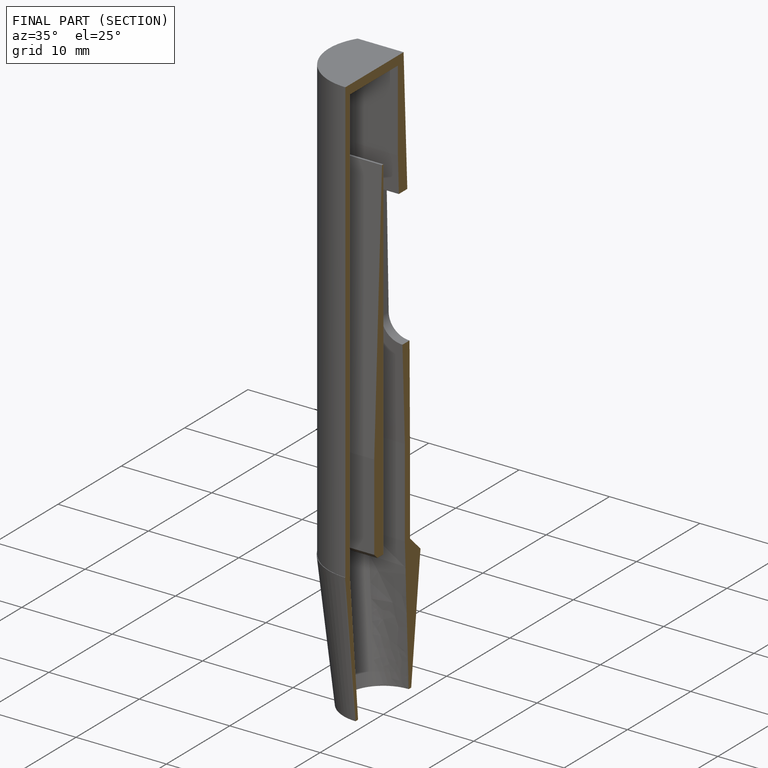
[diagram: finished part — half-section view (interior)]
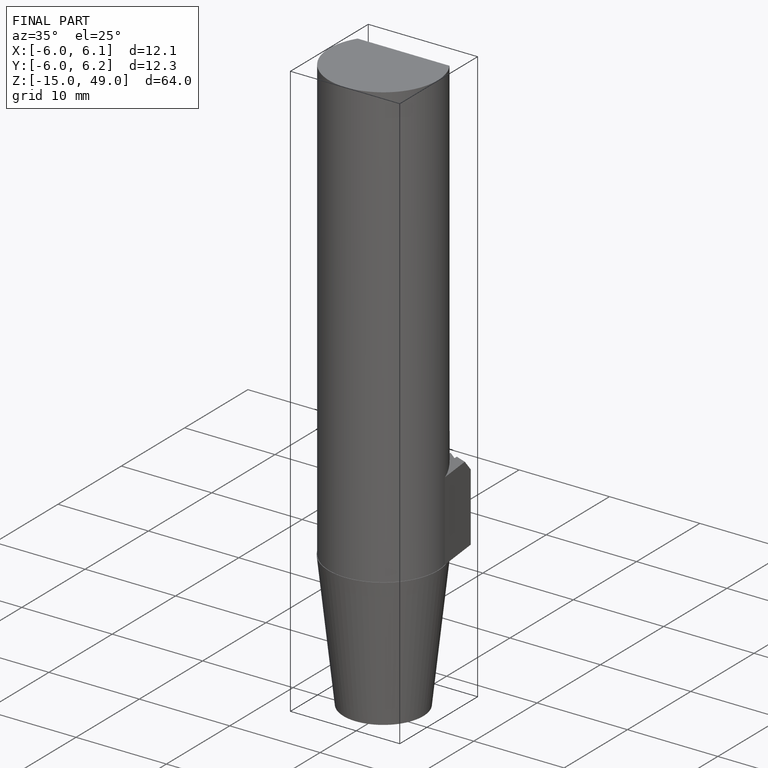
[diagram: finished part — iso view with bounding-box wireframe]
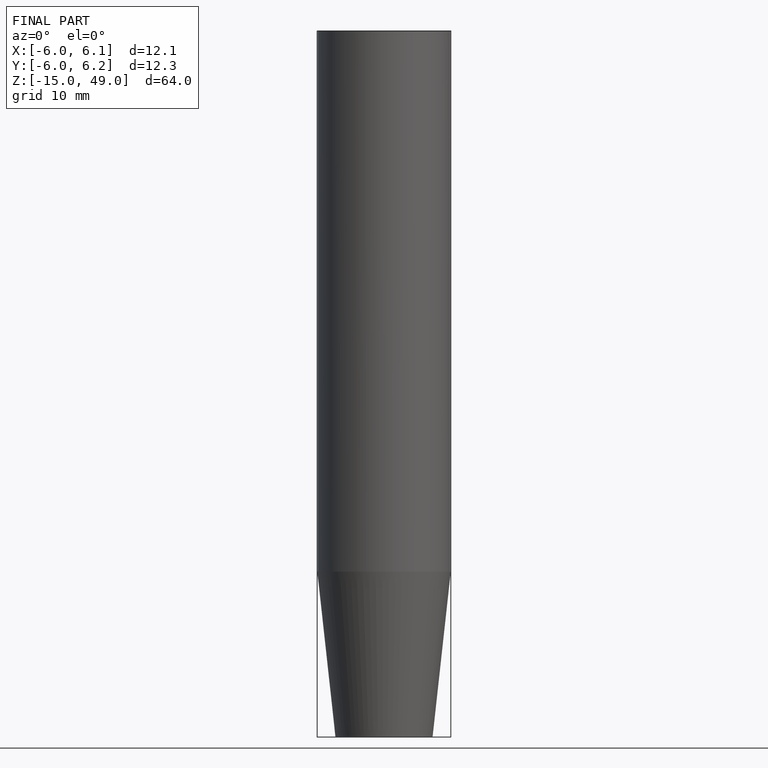
[diagram: finished part — front view with bounding-box wireframe]
